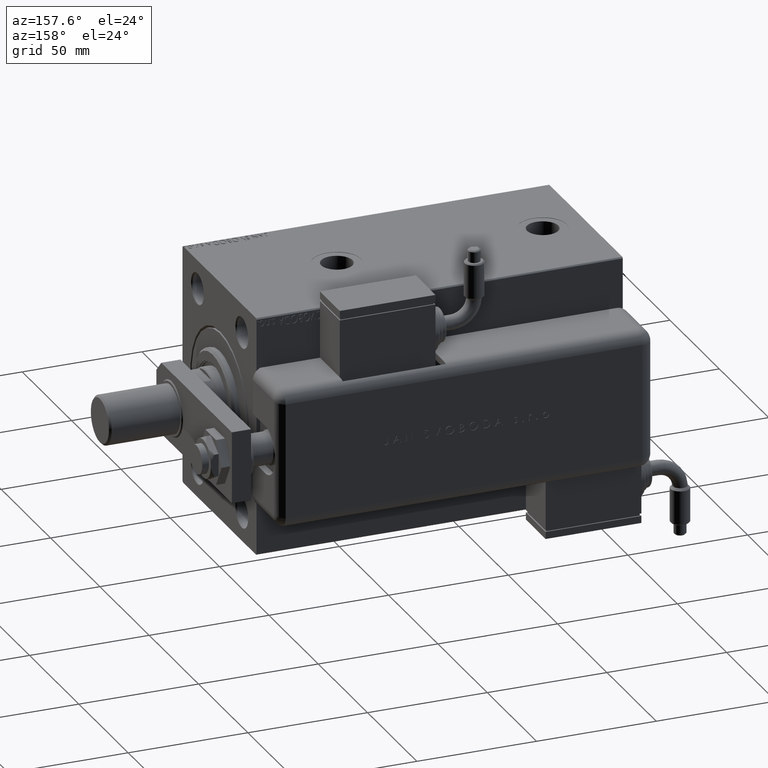
[diagram: clean part render]
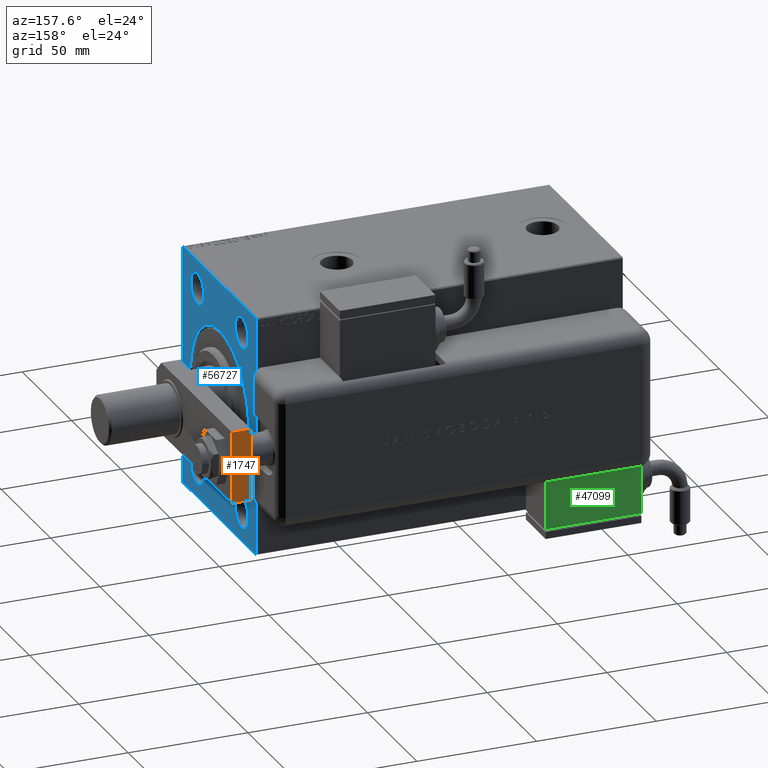
[diagram: same view with three faces highlighted in distinct colors, each labeled with its STEP entity id]
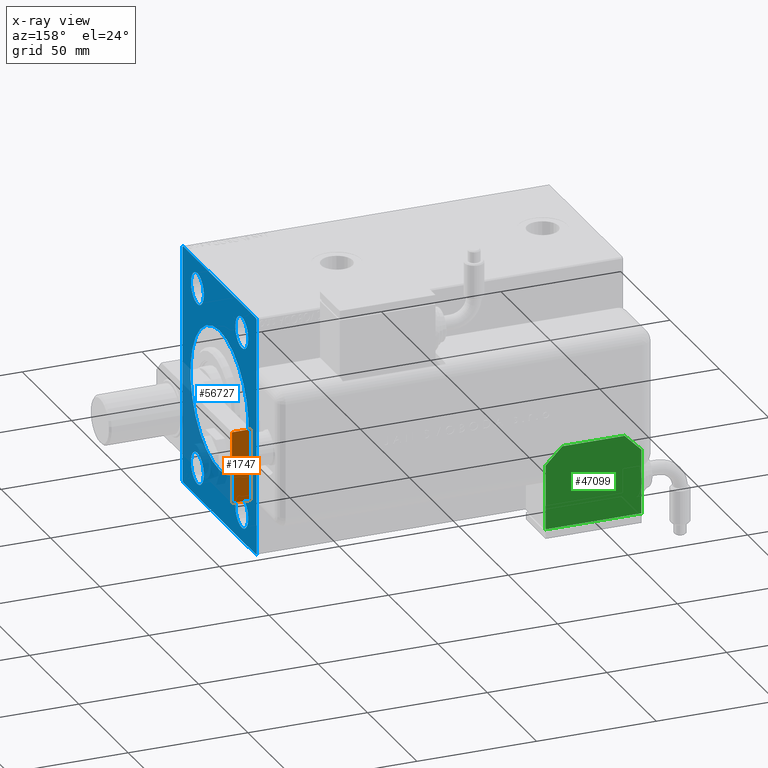
[diagram: x-ray of the same camera — body ghosted, the three highlighted faces saturated]
A machine part, auxiliary view with three faces highlighted in distinct colors.
The next image is the same camera in x-ray (body ghosted, the three faces saturated) — at least one of them is partly hidden behind the body in this view.
Their STEP definitions:

[orange] entity #1747 — the highlighted planar face has unit normal (0, -1, 0).
#1277 = VERTEX_POINT ( 'NONE', #14060 ) ;
#1747 = ADVANCED_FACE ( 'NONE', ( #52250 ), #8757, .F. ) ;
#3332 = LINE ( 'NONE', #33142, #9533 ) ;
#7865 = LINE ( 'NONE', #27213, #47431 ) ;
#8628 = EDGE_CURVE ( 'NONE', #60568, #43281, #37113, .T. ) ;
#8757 = PLANE ( 'NONE',  #13589 ) ;
#9312 = VECTOR ( 'NONE', #46943, 1000.000000000000000 ) ;
#9533 = VECTOR ( 'NONE', #32514, 1000.000000000000000 ) ;
#13589 = AXIS2_PLACEMENT_3D ( 'NONE', #14142, #53184, #52567 ) ;
#14060 = CARTESIAN_POINT ( 'NONE',  ( -14.99999999999999822, 76.50000000000000000, 8.000000000000000000 ) ) ;
#14142 = CARTESIAN_POINT ( 'NONE',  ( 15.00000000000000355, 76.50000000000000000, 8.000000000000000000 ) ) ;
#16438 = VECTOR ( 'NONE', #26969, 1000.000000000000000 ) ;
#22430 = DIRECTION ( 'NONE',  ( -1.000000000000000000, 0.000000000000000000, 0.000000000000000000 ) ) ;
#26103 = EDGE_CURVE ( 'NONE', #34740, #1277, #7865, .T. ) ;
#26157 = ORIENTED_EDGE ( 'NONE', *, *, #26103, .F. ) ;
#26969 = DIRECTION ( 'NONE',  ( -1.000000000000000000, 0.000000000000000000, 0.000000000000000000 ) ) ;
#27213 = CARTESIAN_POINT ( 'NONE',  ( 15.00000000000000355, 76.50000000000000000, 8.000000000000000000 ) ) ;
#29044 = CARTESIAN_POINT ( 'NONE',  ( 15.00000000000000355, 76.50000000000000000, 8.000000000000000000 ) ) ;
#29452 = ORIENTED_EDGE ( 'NONE', *, *, #8628, .T. ) ;
#32211 = ORIENTED_EDGE ( 'NONE', *, *, #56225, .T. ) ;
#32325 = CARTESIAN_POINT ( 'NONE',  ( -14.99999999999999822, 76.50000000000000000, 8.000000000000000000 ) ) ;
#32514 = DIRECTION ( 'NONE',  ( -0.000000000000000000, -0.000000000000000000, -1.000000000000000000 ) ) ;
#33142 = CARTESIAN_POINT ( 'NONE',  ( 15.00000000000000355, 76.50000000000000000, 8.000000000000000000 ) ) ;
#34740 = VERTEX_POINT ( 'NONE', #29044 ) ;
#35239 = ORIENTED_EDGE ( 'NONE', *, *, #48035, .F. ) ;
#37113 = LINE ( 'NONE', #61272, #16438 ) ;
#42047 = CARTESIAN_POINT ( 'NONE',  ( 15.00000000000000355, 76.50000000000000000, 0.000000000000000000 ) ) ;
#43281 = VERTEX_POINT ( 'NONE', #43650 ) ;
#43650 = CARTESIAN_POINT ( 'NONE',  ( -14.99999999999999822, 76.50000000000000000, 0.000000000000000000 ) ) ;
#46943 = DIRECTION ( 'NONE',  ( -0.000000000000000000, -0.000000000000000000, -1.000000000000000000 ) ) ;
#47431 = VECTOR ( 'NONE', #22430, 1000.000000000000000 ) ;
#48035 = EDGE_CURVE ( 'NONE', #1277, #43281, #52647, .T. ) ;
#52250 = FACE_OUTER_BOUND ( 'NONE', #57318, .T. ) ;
#52567 = DIRECTION ( 'NONE',  ( 0.000000000000000000, -0.000000000000000000, -1.000000000000000000 ) ) ;
#52647 = LINE ( 'NONE', #32325, #9312 ) ;
#53184 = DIRECTION ( 'NONE',  ( 0.000000000000000000, -1.000000000000000000, 0.000000000000000000 ) ) ;
#56225 = EDGE_CURVE ( 'NONE', #34740, #60568, #3332, .T. ) ;
#57318 = EDGE_LOOP ( 'NONE', ( #29452, #35239, #26157, #32211 ) ) ;
#60568 = VERTEX_POINT ( 'NONE', #42047 ) ;
#61272 = CARTESIAN_POINT ( 'NONE',  ( 15.00000000000000355, 76.50000000000000000, 0.000000000000000000 ) ) ;

[blue] entity #56727 — the highlighted planar face has unit normal (-1, -0, 0).
#243 = VERTEX_POINT ( 'NONE', #2089 ) ;
#393 = EDGE_CURVE ( 'NONE', #37379, #58698, #46018, .T. ) ;
#1062 = CARTESIAN_POINT ( 'NONE',  ( 0.000000000000000000, -22.50000000000000711, -44.50000000000000711 ) ) ;
#1117 = VERTEX_POINT ( 'NONE', #33474 ) ;
#1521 = DIRECTION ( 'NONE',  ( 1.000000000000000000, 0.000000000000000000, 0.000000000000000000 ) ) ;
#1913 = EDGE_CURVE ( 'NONE', #61188, #16245, #7173, .T. ) ;
#2058 = DIRECTION ( 'NONE',  ( 0.000000000000000000, 1.000000000000000000, 1.850371707708594316E-16 ) ) ;
#2089 = CARTESIAN_POINT ( 'NONE',  ( 0.000000000000000000, 37.50000000000000000, -49.49999999999997158 ) ) ;
#2478 = CARTESIAN_POINT ( 'NONE',  ( 0.000000000000000000, 3.612708057484695548E-15, -29.50000000000002842 ) ) ;
#2563 = CARTESIAN_POINT ( 'NONE',  ( 0.000000000000000000, -37.50000000000000000, 49.99999999999998579 ) ) ;
#3658 = CARTESIAN_POINT ( 'NONE',  ( 0.000000000000000000, -22.50000000000000711, -38.00000000000000000 ) ) ;
#3717 = LINE ( 'NONE', #17381, #24164 ) ;
#3825 = EDGE_CURVE ( 'NONE', #243, #47722, #61033, .T. ) ;
#4395 = ORIENTED_EDGE ( 'NONE', *, *, #7581, .T. ) ;
#4406 = VECTOR ( 'NONE', #34683, 1000.000000000000000 ) ;
#4592 = DIRECTION ( 'NONE',  ( 1.000000000000000000, 0.000000000000000000, 0.000000000000000000 ) ) ;
#4794 = DIRECTION ( 'NONE',  ( 1.000000000000000000, 0.000000000000000000, 0.000000000000000000 ) ) ;
#4988 = EDGE_LOOP ( 'NONE', ( #28109, #13697 ) ) ;
#5066 = EDGE_CURVE ( 'NONE', #16612, #56887, #35651, .T. ) ;
#5202 = VECTOR ( 'NONE', #17819, 1000.000000000000000 ) ;
#5370 = FACE_OUTER_BOUND ( 'NONE', #36186, .T. ) ;
#5852 = CARTESIAN_POINT ( 'NONE',  ( 0.000000000000000000, 22.49999999999999289, -31.49999999999999289 ) ) ;
#6752 = LINE ( 'NONE', #31788, #39418 ) ;
#7173 = CIRCLE ( 'NONE', #53784, 6.500000000000005329 ) ;
#7211 = EDGE_CURVE ( 'NONE', #45472, #37534, #16347, .T. ) ;
#7501 = EDGE_CURVE ( 'NONE', #17233, #18743, #32095, .T. ) ;
#7515 = VERTEX_POINT ( 'NONE', #12132 ) ;
#7559 = CARTESIAN_POINT ( 'NONE',  ( 0.000000000000000000, -36.99999999999997158, 49.99999999999998579 ) ) ;
#7581 = EDGE_CURVE ( 'NONE', #58698, #37379, #11334, .T. ) ;
#7659 = AXIS2_PLACEMENT_3D ( 'NONE', #3658, #4592, #52861 ) ;
#8957 = DIRECTION ( 'NONE',  ( 1.000000000000000000, 0.000000000000000000, 0.000000000000000000 ) ) ;
#9549 = EDGE_CURVE ( 'NONE', #21213, #18269, #19373, .T. ) ;
#9641 = AXIS2_PLACEMENT_3D ( 'NONE', #14778, #24298, #34134 ) ;
#11334 = CIRCLE ( 'NONE', #35646, 6.500000000000005329 ) ;
#11382 = CARTESIAN_POINT ( 'NONE',  ( 0.000000000000000000, 0.000000000000000000, 0.000000000000000000 ) ) ;
#11477 = DIRECTION ( 'NONE',  ( 0.000000000000000000, 0.000000000000000000, -1.000000000000000000 ) ) ;
#12132 = CARTESIAN_POINT ( 'NONE',  ( 0.000000000000000000, -37.50000000000000000, 49.49999999999998579 ) ) ;
#12403 = FACE_BOUND ( 'NONE', #30399, .T. ) ;
#12824 = DIRECTION ( 'NONE',  ( 0.000000000000000000, 0.000000000000000000, -1.000000000000000000 ) ) ;
#13026 = FACE_BOUND ( 'NONE', #33122, .T. ) ;
#13113 = ORIENTED_EDGE ( 'NONE', *, *, #7211, .T. ) ;
#13643 = DIRECTION ( 'NONE',  ( 1.000000000000000000, 0.000000000000000000, 0.000000000000000000 ) ) ;
#13697 = ORIENTED_EDGE ( 'NONE', *, *, #16211, .T. ) ;
#13989 = DIRECTION ( 'NONE',  ( 0.000000000000000000, -1.000000000000000000, -3.700743415417189125E-16 ) ) ;
#14094 = LINE ( 'NONE', #24545, #4406 ) ;
#14557 = CARTESIAN_POINT ( 'NONE',  ( 0.000000000000000000, 36.99999999999997158, -50.00000000000000000 ) ) ;
#14778 = CARTESIAN_POINT ( 'NONE',  ( 0.000000000000000000, -22.50000000000000711, 38.00000000000000000 ) ) ;
#15194 = VERTEX_POINT ( 'NONE', #14557 ) ;
#15698 = AXIS2_PLACEMENT_3D ( 'NONE', #23215, #43201, #48288 ) ;
#16211 = EDGE_CURVE ( 'NONE', #16245, #61188, #38041, .T. ) ;
#16245 = VERTEX_POINT ( 'NONE', #44604 ) ;
#16347 = CIRCLE ( 'NONE', #47898, 6.500000000000005329 ) ;
#16495 = VERTEX_POINT ( 'NONE', #59145 ) ;
#16612 = VERTEX_POINT ( 'NONE', #27050 ) ;
#16778 = EDGE_CURVE ( 'NONE', #37534, #45472, #56275, .T. ) ;
#17233 = VERTEX_POINT ( 'NONE', #17611 ) ;
#17381 = CARTESIAN_POINT ( 'NONE',  ( 0.000000000000000000, 37.50000000000000000, -49.49999999999997158 ) ) ;
#17400 = AXIS2_PLACEMENT_3D ( 'NONE', #19624, #38973, #62205 ) ;
#17611 = CARTESIAN_POINT ( 'NONE',  ( 0.000000000000000000, -36.99999999999997158, -50.00000000000001421 ) ) ;
#17819 = DIRECTION ( 'NONE',  ( -0.000000000000000000, -0.7071067811865672237, 0.7071067811865279218 ) ) ;
#18269 = VERTEX_POINT ( 'NONE', #7559 ) ;
#18743 = VERTEX_POINT ( 'NONE', #57810 ) ;
#19320 = CIRCLE ( 'NONE', #36580, 6.500000000000005329 ) ;
#19373 = LINE ( 'NONE', #43808, #25607 ) ;
#19624 = CARTESIAN_POINT ( 'NONE',  ( 0.000000000000000000, 0.000000000000000000, 0.000000000000000000 ) ) ;
#20022 = CARTESIAN_POINT ( 'NONE',  ( 0.000000000000000000, -22.50000000000000711, 44.50000000000000711 ) ) ;
#21213 = VERTEX_POINT ( 'NONE', #41114 ) ;
#23176 = CIRCLE ( 'NONE', #56635, 6.500000000000005329 ) ;
#23215 = CARTESIAN_POINT ( 'NONE',  ( 0.000000000000000000, 22.49999999999999289, -38.00000000000000000 ) ) ;
#23536 = CARTESIAN_POINT ( 'NONE',  ( 0.000000000000000000, 22.49999999999999289, 38.00000000000000000 ) ) ;
#24101 = FACE_BOUND ( 'NONE', #31347, .T. ) ;
#24164 = VECTOR ( 'NONE', #55815, 1000.000000000000114 ) ;
#24298 = DIRECTION ( 'NONE',  ( 1.000000000000000000, 0.000000000000000000, 0.000000000000000000 ) ) ;
#24450 = DIRECTION ( 'NONE',  ( 0.000000000000000000, 0.000000000000000000, -1.000000000000000000 ) ) ;
#24545 = CARTESIAN_POINT ( 'NONE',  ( 0.000000000000000000, -37.50000000000000000, 49.49999999999998579 ) ) ;
#24741 = VECTOR ( 'NONE', #11477, 1000.000000000000000 ) ;
#24893 = CARTESIAN_POINT ( 'NONE',  ( 0.000000000000000000, 22.49999999999999289, 38.00000000000000000 ) ) ;
#25607 = VECTOR ( 'NONE', #13989, 1000.000000000000000 ) ;
#27050 = CARTESIAN_POINT ( 'NONE',  ( 0.000000000000000000, 0.000000000000000000, 29.50000000000002842 ) ) ;
#27216 = AXIS2_PLACEMENT_3D ( 'NONE', #11382, #1521, #49477 ) ;
#27505 = VECTOR ( 'NONE', #46413, 1000.000000000000000 ) ;
#28109 = ORIENTED_EDGE ( 'NONE', *, *, #1913, .T. ) ;
#28275 = DIRECTION ( 'NONE',  ( 0.000000000000000000, 0.000000000000000000, -1.000000000000000000 ) ) ;
#28646 = ORIENTED_EDGE ( 'NONE', *, *, #39851, .T. ) ;
#29810 = ORIENTED_EDGE ( 'NONE', *, *, #55441, .T. ) ;
#30184 = EDGE_CURVE ( 'NONE', #21213, #47722, #6752, .T. ) ;
#30399 = EDGE_LOOP ( 'NONE', ( #4395, #35356 ) ) ;
#30453 = ORIENTED_EDGE ( 'NONE', *, *, #30184, .T. ) ;
#30945 = ORIENTED_EDGE ( 'NONE', *, *, #55166, .F. ) ;
#30987 = EDGE_LOOP ( 'NONE', ( #54212, #60374 ) ) ;
#31347 = EDGE_LOOP ( 'NONE', ( #13113, #51410 ) ) ;
#31573 = CARTESIAN_POINT ( 'NONE',  ( 0.000000000000000000, -37.50000000000000000, -50.00000000000001421 ) ) ;
#31788 = CARTESIAN_POINT ( 'NONE',  ( 0.000000000000000000, 36.99999999999995737, 50.00000000000001421 ) ) ;
#32095 = LINE ( 'NONE', #41941, #5202 ) ;
#33122 = EDGE_LOOP ( 'NONE', ( #52369, #28646 ) ) ;
#33474 = CARTESIAN_POINT ( 'NONE',  ( 0.000000000000000000, 22.49999999999999289, 31.49999999999999289 ) ) ;
#34134 = DIRECTION ( 'NONE',  ( 0.000000000000000000, 0.000000000000000000, -1.000000000000000000 ) ) ;
#34269 = ORIENTED_EDGE ( 'NONE', *, *, #7501, .T. ) ;
#34683 = DIRECTION ( 'NONE',  ( -0.000000000000000000, 0.7071067811865672237, 0.7071067811865279218 ) ) ;
#35356 = ORIENTED_EDGE ( 'NONE', *, *, #393, .T. ) ;
#35646 = AXIS2_PLACEMENT_3D ( 'NONE', #57498, #4794, #24450 ) ;
#35651 = CIRCLE ( 'NONE', #17400, 29.50000000000002842 ) ;
#36186 = EDGE_LOOP ( 'NONE', ( #44865, #29810, #49072, #30453, #55128, #41186, #30945, #34269 ) ) ;
#36580 = AXIS2_PLACEMENT_3D ( 'NONE', #24893, #40110, #59823 ) ;
#37379 = VERTEX_POINT ( 'NONE', #1062 ) ;
#37519 = DIRECTION ( 'NONE',  ( 0.000000000000000000, 0.000000000000000000, -1.000000000000000000 ) ) ;
#37534 = VERTEX_POINT ( 'NONE', #41366 ) ;
#37788 = CARTESIAN_POINT ( 'NONE',  ( 0.000000000000000000, 37.49999999999998579, 49.49999999999998579 ) ) ;
#38041 = CIRCLE ( 'NONE', #9641, 6.500000000000005329 ) ;
#38973 = DIRECTION ( 'NONE',  ( 1.000000000000000000, 0.000000000000000000, 0.000000000000000000 ) ) ;
#39027 = DIRECTION ( 'NONE',  ( 1.000000000000000000, 0.000000000000000000, 0.000000000000000000 ) ) ;
#39312 = DIRECTION ( 'NONE',  ( 0.000000000000000000, 0.000000000000000000, -1.000000000000000000 ) ) ;
#39418 = VECTOR ( 'NONE', #46719, 1000.000000000000114 ) ;
#39851 = EDGE_CURVE ( 'NONE', #1117, #16495, #23176, .T. ) ;
#40110 = DIRECTION ( 'NONE',  ( 1.000000000000000000, 0.000000000000000000, 0.000000000000000000 ) ) ;
#40321 = EDGE_CURVE ( 'NONE', #56887, #16612, #46474, .T. ) ;
#40374 = EDGE_CURVE ( 'NONE', #243, #15194, #3717, .T. ) ;
#41009 = CARTESIAN_POINT ( 'NONE',  ( 0.000000000000000000, 37.50000000000000000, -50.00000000000000000 ) ) ;
#41114 = CARTESIAN_POINT ( 'NONE',  ( 0.000000000000000000, 36.99999999999995737, 50.00000000000001421 ) ) ;
#41186 = ORIENTED_EDGE ( 'NONE', *, *, #40374, .T. ) ;
#41292 = LINE ( 'NONE', #2563, #24741 ) ;
#41366 = CARTESIAN_POINT ( 'NONE',  ( 0.000000000000000000, 22.49999999999999289, -44.50000000000000711 ) ) ;
#41941 = CARTESIAN_POINT ( 'NONE',  ( 0.000000000000000000, -36.99999999999997158, -50.00000000000001421 ) ) ;
#42444 = CARTESIAN_POINT ( 'NONE',  ( 0.000000000000000000, -22.50000000000000711, -31.49999999999999289 ) ) ;
#42866 = CARTESIAN_POINT ( 'NONE',  ( 0.000000000000000000, -22.50000000000000711, 38.00000000000000000 ) ) ;
#43145 = CARTESIAN_POINT ( 'NONE',  ( 0.000000000000000000, 0.000000000000000000, 0.000000000000000000 ) ) ;
#43201 = DIRECTION ( 'NONE',  ( 1.000000000000000000, 0.000000000000000000, 0.000000000000000000 ) ) ;
#43808 = CARTESIAN_POINT ( 'NONE',  ( 0.000000000000000000, 37.49999999999998579, 50.00000000000001421 ) ) ;
#44604 = CARTESIAN_POINT ( 'NONE',  ( 0.000000000000000000, -22.50000000000000711, 31.49999999999999289 ) ) ;
#44865 = ORIENTED_EDGE ( 'NONE', *, *, #57430, .F. ) ;
#45472 = VERTEX_POINT ( 'NONE', #5852 ) ;
#45507 = EDGE_CURVE ( 'NONE', #16495, #1117, #19320, .T. ) ;
#45559 = LINE ( 'NONE', #31573, #61204 ) ;
#46000 = AXIS2_PLACEMENT_3D ( 'NONE', #43145, #13643, #39312 ) ;
#46018 = CIRCLE ( 'NONE', #7659, 6.500000000000005329 ) ;
#46160 = DIRECTION ( 'NONE',  ( 1.000000000000000000, 0.000000000000000000, 0.000000000000000000 ) ) ;
#46413 = DIRECTION ( 'NONE',  ( 0.000000000000000000, -1.387778780781445429E-16, 1.000000000000000000 ) ) ;
#46474 = CIRCLE ( 'NONE', #27216, 29.50000000000002842 ) ;
#46719 = DIRECTION ( 'NONE',  ( -0.000000000000000000, 0.7071067811865474617, -0.7071067811865474617 ) ) ;
#47421 = CARTESIAN_POINT ( 'NONE',  ( 0.000000000000000000, 22.49999999999999289, -38.00000000000000000 ) ) ;
#47722 = VERTEX_POINT ( 'NONE', #37788 ) ;
#47898 = AXIS2_PLACEMENT_3D ( 'NONE', #47421, #46160, #12824 ) ;
#48288 = DIRECTION ( 'NONE',  ( 0.000000000000000000, 0.000000000000000000, -1.000000000000000000 ) ) ;
#48556 = PLANE ( 'NONE',  #46000 ) ;
#49072 = ORIENTED_EDGE ( 'NONE', *, *, #9549, .F. ) ;
#49477 = DIRECTION ( 'NONE',  ( 0.000000000000000000, 0.000000000000000000, -1.000000000000000000 ) ) ;
#51410 = ORIENTED_EDGE ( 'NONE', *, *, #16778, .T. ) ;
#52369 = ORIENTED_EDGE ( 'NONE', *, *, #45507, .T. ) ;
#52861 = DIRECTION ( 'NONE',  ( 0.000000000000000000, 0.000000000000000000, -1.000000000000000000 ) ) ;
#53784 = AXIS2_PLACEMENT_3D ( 'NONE', #42866, #39027, #28275 ) ;
#54212 = ORIENTED_EDGE ( 'NONE', *, *, #5066, .T. ) ;
#55128 = ORIENTED_EDGE ( 'NONE', *, *, #3825, .F. ) ;
#55166 = EDGE_CURVE ( 'NONE', #17233, #15194, #45559, .T. ) ;
#55441 = EDGE_CURVE ( 'NONE', #7515, #18269, #14094, .T. ) ;
#55815 = DIRECTION ( 'NONE',  ( 0.000000000000000000, -0.7071067811865474617, -0.7071067811865474617 ) ) ;
#55900 = FACE_BOUND ( 'NONE', #30987, .T. ) ;
#56275 = CIRCLE ( 'NONE', #15698, 6.500000000000005329 ) ;
#56522 = FACE_BOUND ( 'NONE', #4988, .T. ) ;
#56635 = AXIS2_PLACEMENT_3D ( 'NONE', #23536, #8957, #37519 ) ;
#56727 = ADVANCED_FACE ( 'NONE', ( #55900, #12403, #56522, #13026, #24101, #5370 ), #48556, .F. ) ;
#56887 = VERTEX_POINT ( 'NONE', #2478 ) ;
#57430 = EDGE_CURVE ( 'NONE', #7515, #18743, #41292, .T. ) ;
#57498 = CARTESIAN_POINT ( 'NONE',  ( 0.000000000000000000, -22.50000000000000711, -38.00000000000000000 ) ) ;
#57810 = CARTESIAN_POINT ( 'NONE',  ( 0.000000000000000000, -37.50000000000000000, -49.50000000000001421 ) ) ;
#58698 = VERTEX_POINT ( 'NONE', #42444 ) ;
#59145 = CARTESIAN_POINT ( 'NONE',  ( 0.000000000000000000, 22.49999999999999289, 44.50000000000000711 ) ) ;
#59823 = DIRECTION ( 'NONE',  ( 0.000000000000000000, 0.000000000000000000, -1.000000000000000000 ) ) ;
#60374 = ORIENTED_EDGE ( 'NONE', *, *, #40321, .T. ) ;
#61033 = LINE ( 'NONE', #41009, #27505 ) ;
#61188 = VERTEX_POINT ( 'NONE', #20022 ) ;
#61204 = VECTOR ( 'NONE', #2058, 1000.000000000000000 ) ;
#62205 = DIRECTION ( 'NONE',  ( 0.000000000000000000, 0.000000000000000000, -1.000000000000000000 ) ) ;

[green] entity #47099 — the highlighted planar face has unit normal (0, -1, -0).
#869 = VECTOR ( 'NONE', #52140, 1000.000000000000000 ) ;
#6311 = EDGE_CURVE ( 'NONE', #28762, #22797, #15420, .T. ) ;
#7346 = ORIENTED_EDGE ( 'NONE', *, *, #40053, .F. ) ;
#8166 = CARTESIAN_POINT ( 'NONE',  ( 20.00000000000005329, -13.49999999999996092, -10.00000000000000000 ) ) ;
#8858 = CARTESIAN_POINT ( 'NONE',  ( -19.99999999999994316, -13.49999999999996092, -10.00000000000000000 ) ) ;
#11640 = CARTESIAN_POINT ( 'NONE',  ( 0.000000000000000000, 0.000000000000000000, -10.00000000000000000 ) ) ;
#11642 = EDGE_CURVE ( 'NONE', #28060, #28709, #17154, .T. ) ;
#14913 = VERTEX_POINT ( 'NONE', #17447 ) ;
#15420 = LINE ( 'NONE', #58927, #24543 ) ;
#15983 = VERTEX_POINT ( 'NONE', #8166 ) ;
#16087 = DIRECTION ( 'NONE',  ( 1.000000000000000000, 0.000000000000000000, -0.000000000000000000 ) ) ;
#16215 = CARTESIAN_POINT ( 'NONE',  ( -19.99999999999994316, -13.49999999999996092, -10.00000000000000000 ) ) ;
#16519 = DIRECTION ( 'NONE',  ( 1.284980352575412699E-16, 1.000000000000000000, 0.000000000000000000 ) ) ;
#17103 = VECTOR ( 'NONE', #16519, 1000.000000000000000 ) ;
#17154 = LINE ( 'NONE', #16215, #41855 ) ;
#17447 = CARTESIAN_POINT ( 'NONE',  ( -19.99999999999994316, -13.49999999999996092, -10.00000000000000000 ) ) ;
#18365 = AXIS2_PLACEMENT_3D ( 'NONE', #11640, #30990, #16087 ) ;
#18791 = CARTESIAN_POINT ( 'NONE',  ( 12.99999999999999112, 20.50000000000009592, -10.00000000000000000 ) ) ;
#19243 = LINE ( 'NONE', #53831, #43251 ) ;
#19893 = ORIENTED_EDGE ( 'NONE', *, *, #39891, .F. ) ;
#20161 = DIRECTION ( 'NONE',  ( 1.000000000000000000, 0.000000000000000000, 0.000000000000000000 ) ) ;
#20214 = EDGE_CURVE ( 'NONE', #14913, #15983, #19243, .T. ) ;
#22503 = DIRECTION ( 'NONE',  ( -1.284980352575421081E-16, -1.000000000000000000, -0.000000000000000000 ) ) ;
#22797 = VERTEX_POINT ( 'NONE', #18791 ) ;
#24543 = VECTOR ( 'NONE', #49397, 1000.000000000000114 ) ;
#25932 = PLANE ( 'NONE',  #18365 ) ;
#26985 = CARTESIAN_POINT ( 'NONE',  ( 20.00000000000005329, -13.49999999999996092, -10.00000000000000000 ) ) ;
#28060 = VERTEX_POINT ( 'NONE', #52961 ) ;
#28309 = LINE ( 'NONE', #38142, #869 ) ;
#28709 = VERTEX_POINT ( 'NONE', #61874 ) ;
#28762 = VERTEX_POINT ( 'NONE', #34503 ) ;
#30418 = VECTOR ( 'NONE', #22503, 1000.000000000000000 ) ;
#30990 = DIRECTION ( 'NONE',  ( 0.000000000000000000, 0.000000000000000000, 1.000000000000000000 ) ) ;
#34219 = ORIENTED_EDGE ( 'NONE', *, *, #6311, .F. ) ;
#34503 = CARTESIAN_POINT ( 'NONE',  ( 20.00000000000005684, 13.50000000000003730, -10.00000000000000000 ) ) ;
#35567 = DIRECTION ( 'NONE',  ( -1.284980352575421081E-16, -1.000000000000000000, -0.000000000000000000 ) ) ;
#36533 = LINE ( 'NONE', #50527, #48813 ) ;
#38142 = CARTESIAN_POINT ( 'NONE',  ( -19.99999999999993960, 13.49999999999986500, -10.00000000000000000 ) ) ;
#39007 = ORIENTED_EDGE ( 'NONE', *, *, #50729, .T. ) ;
#39891 = EDGE_CURVE ( 'NONE', #43614, #28060, #28309, .T. ) ;
#40053 = EDGE_CURVE ( 'NONE', #15983, #28762, #41271, .T. ) ;
#41271 = LINE ( 'NONE', #26985, #17103 ) ;
#41855 = VECTOR ( 'NONE', #35567, 1000.000000000000000 ) ;
#43251 = VECTOR ( 'NONE', #20161, 1000.000000000000000 ) ;
#43614 = VERTEX_POINT ( 'NONE', #51173 ) ;
#43873 = EDGE_CURVE ( 'NONE', #28709, #14913, #51730, .T. ) ;
#44799 = ORIENTED_EDGE ( 'NONE', *, *, #20214, .F. ) ;
#45122 = DIRECTION ( 'NONE',  ( 1.000000000000000000, 0.000000000000000000, 0.000000000000000000 ) ) ;
#45534 = ORIENTED_EDGE ( 'NONE', *, *, #11642, .F. ) ;
#47099 = ADVANCED_FACE ( 'NONE', ( #59596 ), #25932, .F. ) ;
#48813 = VECTOR ( 'NONE', #45122, 1000.000000000000000 ) ;
#49397 = DIRECTION ( 'NONE',  ( -0.7071067811865479058, 0.7071067811865470176, -0.000000000000000000 ) ) ;
#50527 = CARTESIAN_POINT ( 'NONE',  ( 0.000000000000000000, 20.50000000000009592, -10.00000000000000000 ) ) ;
#50729 = EDGE_CURVE ( 'NONE', #43614, #22797, #36533, .T. ) ;
#51173 = CARTESIAN_POINT ( 'NONE',  ( -12.99999999999994138, 20.50000000000009592, -10.00000000000000000 ) ) ;
#51730 = LINE ( 'NONE', #8858, #30418 ) ;
#52140 = DIRECTION ( 'NONE',  ( -0.7071067811865356934, -0.7071067811865593411, -0.000000000000000000 ) ) ;
#52961 = CARTESIAN_POINT ( 'NONE',  ( -19.99999999999993960, 13.49999999999986500, -10.00000000000000000 ) ) ;
#53831 = CARTESIAN_POINT ( 'NONE',  ( -19.99999999999994316, -13.49999999999996092, -10.00000000000000000 ) ) ;
#57864 = EDGE_LOOP ( 'NONE', ( #19893, #39007, #34219, #7346, #44799, #61458, #45534 ) ) ;
#58927 = CARTESIAN_POINT ( 'NONE',  ( 9.999999999999984013, 23.50000000000009592, -10.00000000000000000 ) ) ;
#59596 = FACE_OUTER_BOUND ( 'NONE', #57864, .T. ) ;
#61458 = ORIENTED_EDGE ( 'NONE', *, *, #43873, .F. ) ;
#61874 = CARTESIAN_POINT ( 'NONE',  ( -19.99999999999993960, 2.569960705150834076E-15, -9.999999999999996447 ) ) ;